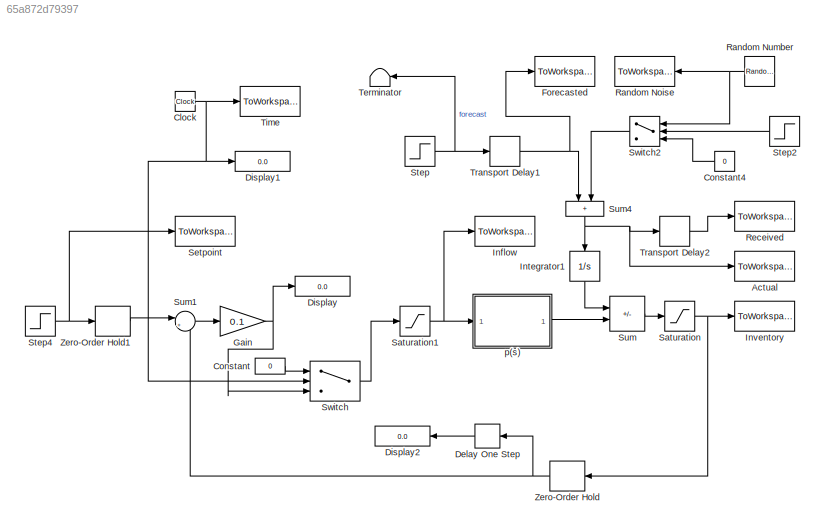
MODEL slx_65a872d79397
KIND model
CONFIG AbsTol = 1e-6
CONFIG EnableMultiTasking = off
CONFIG FixedStep = auto
CONFIG MaxStep = auto
CONFIG MinStep = auto
CONFIG RelTol = 1e-3
CONFIG SampleTimeConstraint = Unconstrained
CONFIG SolverName = ode15s
CONFIG StartTime = 0.0
CONFIG StopTime = 10.0
BLOCK [ToWorkspace] Actual
  MaxDataPoints = inf
  Ports = [1]
  SampleTime = Ts
  VariableName = d2
BLOCK [Clock] Clock
BLOCK [Constant] Constant
  Value = 0
BLOCK [Constant] Constant4
  Value = 0
BLOCK [Delay] Delay One Step
  DelayLength = 1
  InputPortMap = u0
  Ports = [1, 1]
BLOCK [Display] Display
  Decimation = 1
  Ports = [1]
BLOCK [Display] Display1
  Decimation = 1
  Ports = [1]
BLOCK [Display] Display2
  Decimation = 1
  Ports = [1]
BLOCK [ToWorkspace] Forecasted
  MaxDataPoints = inf
  Ports = [1]
  SampleTime = Ts
  VariableName = d1
BLOCK [Gain] Gain
  Gain = 0.1
BLOCK [ToWorkspace] Inflow
  MaxDataPoints = inf
  Ports = [1]
  SampleTime = Ts
  VariableName = u
BLOCK [Integrator] Integrator1
  NameLocation = left
  Ports = [1, 1]
BLOCK [ToWorkspace] Inventory
  MaxDataPoints = inf
  Ports = [1]
  SampleTime = Ts
  VariableName = y
BLOCK [ToWorkspace] Random Noise
  MaxDataPoints = inf
  Ports = [1]
  SampleTime = Ts
  VariableName = e
BLOCK [RandomNumber] Random Number
  SampleTime = 1
  Variance = vard(2)
BLOCK [ToWorkspace] Received
  MaxDataPoints = inf
  Ports = [1]
  SampleTime = Ts
  VariableName = d3
BLOCK [Saturate] Saturation
  LowerLimit = -inf
  UpperLimit = inf
BLOCK [Saturate] Saturation1
  LowerLimit = -inf
  UpperLimit = inf
BLOCK [ToWorkspace] Setpoint
  MaxDataPoints = inf
  Ports = [1]
  SampleTime = Ts
  VariableName = r
BLOCK [Step] Step
  After = dchange(2)
  SampleTime = 0
  Time = dchange(1) - thetaf
BLOCK [Step] Step2
  SampleTime = 0
  Time = vard(1)
BLOCK [Step] Step4
  After = rchange(2)
  NameLocation = top
  SampleTime = 0
  Time = rchange(1)
BLOCK [Sum] Sum
  IconShape = rectangular
  InputSameDT = on
  Inputs = -+
  OutDataTypeStr = Inherit: Same as first input
  Ports = [2, 1]
  SaturateOnIntegerOverflow = on
BLOCK [Sum] Sum1
  Inputs = |+-
  Ports = [2, 1]
BLOCK [Sum] Sum4
  IconShape = rectangular
  InputSameDT = on
  NameLocation = left
  OutDataTypeStr = Inherit: Same as first input
  Ports = [2, 1]
  SaturateOnIntegerOverflow = on
BLOCK [Switch] Switch
  InputSameDT = off
  SaturateOnIntegerOverflow = off
  Threshold = 20
BLOCK [Switch] Switch2
  Threshold = 1
BLOCK [Terminator] Terminator
BLOCK [ToWorkspace] Time
  MaxDataPoints = inf
  Ports = [1]
  SampleTime = Ts
  VariableName = t
BLOCK [TransportDelay] Transport Delay1
  DelayTime = thetaf
  Ports = [1, 1]
BLOCK [TransportDelay] Transport Delay2
  DelayTime = thetas
  Ports = [1, 1]
BLOCK [ZeroOrderHold] Zero-Order Hold
  SampleTime = 10
BLOCK [ZeroOrderHold] Zero-Order Hold1
  SampleTime = 10
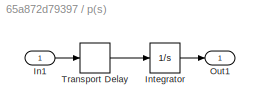
BLOCK [SubSystem] p(s)
  Ports = [1, 1]
  RequestExecContextInheritance = off
BLOCK [Inport] p(s)/In1
BLOCK [Integrator] p(s)/Integrator
  Ports = [1, 1]
BLOCK [Outport] p(s)/Out1
  InitialOutput = 0
BLOCK [TransportDelay] p(s)/Transport Delay
  DelayTime = thetap
  Ports = [1, 1]
NET Clock:1 -> Display1:1, Switch:2, Time:1
LINE Constant4:1 -> Switch2:3
LINE Constant:1 -> Switch:1
LINE Delay One Step:1 -> Display2:1
NET Gain:1 -> Display:1, Switch:3
LINE Integrator1:1 -> Sum:1
NET Random Number:1 -> Random Noise:1, Switch2:1
NET Saturation1:1 -> Inflow:1, p(s):1
NET Saturation:1 -> Inventory:1, Zero-Order Hold:1
LINE Step2:1 -> Switch2:2
NET Step4:1 -> Setpoint:1, Zero-Order Hold1:1
NET Step:1 -> Terminator:1, Transport Delay1:1
LINE Sum1:1 -> Gain:1
NET Sum4:1 -> Actual:1, Integrator1:1, Transport Delay2:1
LINE Sum:1 -> Saturation:1
LINE Switch2:1 -> Sum4:2
LINE Switch:1 -> Saturation1:1
NET Transport Delay1:1 -> Forecasted:1, Sum4:1
LINE Transport Delay2:1 -> Received:1
LINE Zero-Order Hold1:1 -> Sum1:1
NET Zero-Order Hold:1 -> Delay One Step:1, Sum1:2
LINE p(s)/In1:1 -> p(s)/Transport Delay:1
LINE p(s)/Integrator:1 -> p(s)/Out1:1
LINE p(s)/Transport Delay:1 -> p(s)/Integrator:1
LINE p(s):1 -> Sum:2
note: NET lines group one-source signal fan-out (src -> all destinations, sorted); 1:1 wires keep LINE
